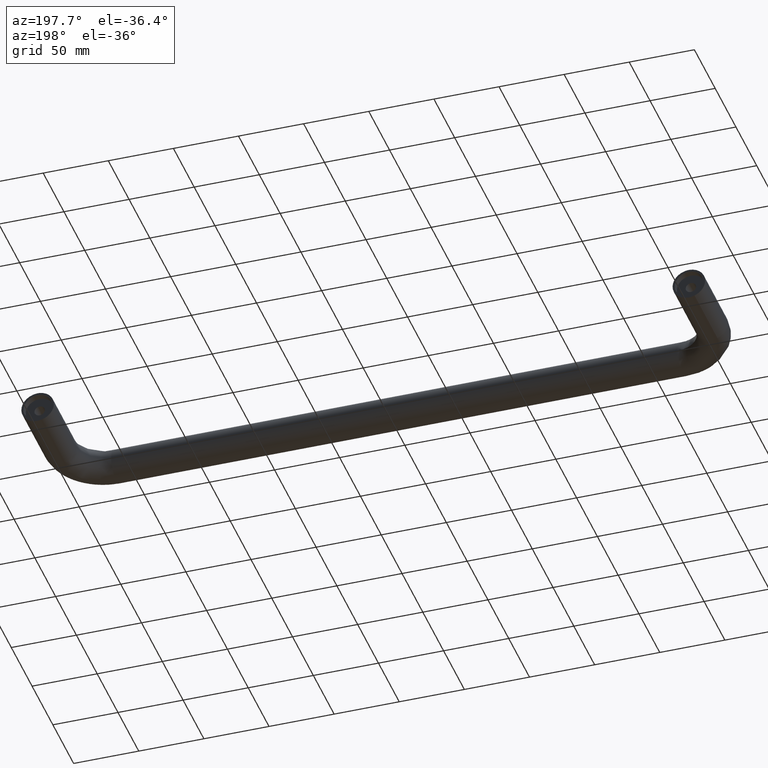
[diagram: clean part render]
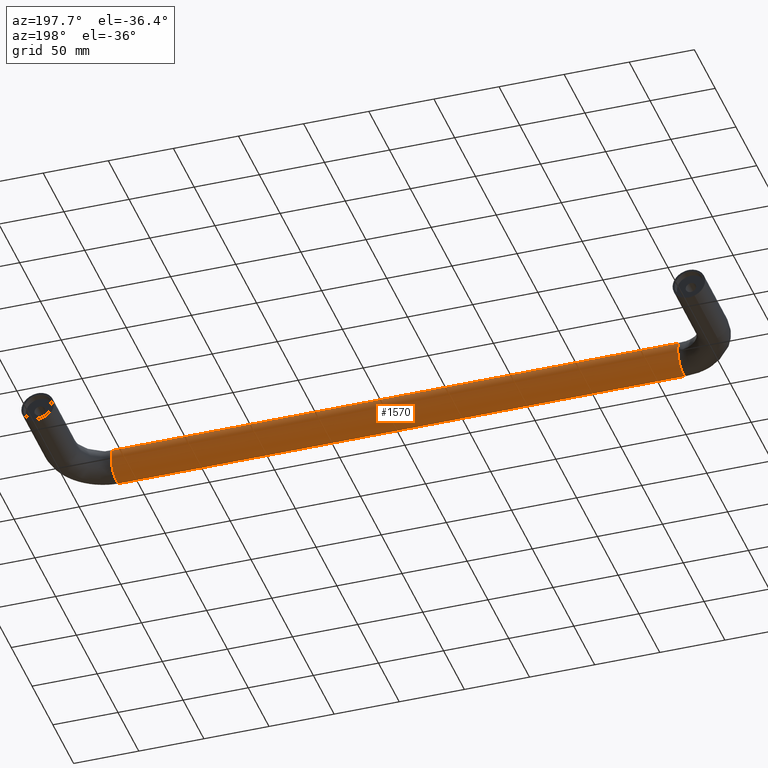
[diagram: same view with one face highlighted and labeled with its STEP entity id]
A machine part, auxiliary view. The second image highlights one B-rep face of the part: STEP entity #1570.
In plain terms, the highlighted face is a freeform B-spline surface patch.
Its self-contained STEP definition (entity closure, byte-faithful):
#1361=CARTESIAN_POINT('',(32.499999999126238,-77.767795817033090,7.844373890179743));
#1362=VERTEX_POINT('',#1361);
#1393=CARTESIAN_POINT('',(32.500000000000000,-96.415632055581426,8.761364337218531));
#1394=VERTEX_POINT('',#1393);
#1408=CARTESIAN_POINT('',(467.500000000000110,-96.415632073586025,8.761364318896899));
#1409=VERTEX_POINT('',#1408);
#1410=CARTESIAN_POINT('',(32.500000000000000,-96.415632055581426,8.761364337218531));
#1411=CARTESIAN_POINT('',(467.500000000000110,-96.415632073586025,8.761364318896899));
#1412=QUASI_UNIFORM_CURVE('',1,(#1410,#1411),.UNSPECIFIED.,.F.,.U.);
#1413=EDGE_CURVE('',#1394,#1409,#1412,.T.);
#1430=CARTESIAN_POINT('',(467.500008146740580,-77.767796957627183,7.844375306044061));
#1431=VERTEX_POINT('',#1430);
#1445=CARTESIAN_POINT('',(32.499999999126238,-77.767795817033090,7.844373890179743));
#1446=CARTESIAN_POINT('',(467.500008146740580,-77.767796957627183,7.844375306044061));
#1447=QUASI_UNIFORM_CURVE('',1,(#1445,#1446),.UNSPECIFIED.,.F.,.U.);
#1448=EDGE_CURVE('',#1362,#1431,#1447,.T.);
#1453=CARTESIAN_POINT('',(21.624998916513270,-96.415630614427272,8.761365803748129));
#1454=CARTESIAN_POINT('',(21.624998916513274,-105.176996418175410,-0.154264810679143));
#1455=CARTESIAN_POINT('',(21.624998916513270,-96.261365803748134,-8.915630614427272));
#1456=CARTESIAN_POINT('',(21.624998916513274,-87.345735189320862,-17.676996418175403));
#1457=CARTESIAN_POINT('',(21.624998916513270,-78.584369385572728,-8.761365803748129));
#1458=CARTESIAN_POINT('',(21.624998916513270,-70.782445849426026,-0.822070733962020));
#1459=CARTESIAN_POINT('',(21.624998916513274,-77.767796957623645,7.844375306036842));
#1460=CARTESIAN_POINT('',(478.646919286294010,-96.415630614427272,8.761365803748129));
#1461=CARTESIAN_POINT('',(478.646919286294010,-105.176996418175410,-0.154264810679143));
#1462=CARTESIAN_POINT('',(478.646919286294010,-96.261365803748134,-8.915630614427272));
#1463=CARTESIAN_POINT('',(478.646919286294010,-87.345735189320862,-17.676996418175403));
#1464=CARTESIAN_POINT('',(478.646919286294010,-78.584369385572728,-8.761365803748129));
#1465=CARTESIAN_POINT('',(478.646919286293950,-70.782445849426026,-0.822070733962020));
#1466=CARTESIAN_POINT('',(478.646919286294010,-77.767796957623645,7.844375306036842));
#1474=(BOUNDED_SURFACE()B_SPLINE_SURFACE(2,1,((#1453,#1460),(#1454,#1461),(#1455,#1462),(#1456,#1463),(#1457,#1464),(#1458,#1465),(#1459,#1466)),.UNSPECIFIED.,.F.,.F.,.U.)B_SPLINE_SURFACE_WITH_KNOTS((3,2,2,3),(2,2),(0.0,20.710678118654759,41.421356237309510,60.475180106471882),(0.0,457.021920369780670),.UNSPECIFIED.)GEOMETRIC_REPRESENTATION_ITEM()RATIONAL_B_SPLINE_SURFACE(((1.0,1.0),(0.707106781186548,0.707106781186548),(1.0,1.0),(0.707106781186548,0.707106781186548),(1.0,1.0),(0.730538238691624,0.730538238691624),(0.956886118190660,0.956886118190660)))REPRESENTATION_ITEM('')SURFACE());
#1475=CARTESIAN_POINT('',(32.500000001655842,-75.030429128414596,-0.871666380278624));
#1476=VERTEX_POINT('',#1475);
#1477=CARTESIAN_POINT('',(32.500000001655842,-75.030429128414596,-0.871666380278624));
#1478=CARTESIAN_POINT('',(32.500000000000000,-75.0,-0.436364686713129));
#1479=CARTESIAN_POINT('',(32.500000000000000,-75.0,0.0));
#1480=CARTESIAN_POINT('',(32.499999999999993,-75.0,4.410479177521092));
#1481=CARTESIAN_POINT('',(32.499999999126238,-77.767795817033090,7.844373890179743));
#1489=(BOUNDED_CURVE()B_SPLINE_CURVE(2,(#1477,#1478,#1479,#1480,#1481),.UNSPECIFIED.,.F.,.U.)B_SPLINE_CURVE_WITH_KNOTS((3,2,3),(0.737833666244486,0.750000000000000,0.858840154701086),.UNSPECIFIED.)CURVE()GEOMETRIC_REPRESENTATION_ITEM()RATIONAL_B_SPLINE_CURVE((0.972879833470600,0.985746253380755,1.0,0.872485827013779,0.856000952542769))REPRESENTATION_ITEM(''));
#1490=EDGE_CURVE('',#1476,#1362,#1489,.T.);
#1491=ORIENTED_EDGE('',*,*,#1490,.T.);
#1492=ORIENTED_EDGE('',*,*,#1448,.T.);
#1493=CARTESIAN_POINT('',(467.500043179713880,-87.342952389587651,-12.499013402957210));
#1494=VERTEX_POINT('',#1493);
#1495=CARTESIAN_POINT('',(467.500043179713880,-87.342952389587651,-12.499013402957205));
#1496=CARTESIAN_POINT('',(467.500043045776580,-75.000000000000384,-12.343926668050738));
#1497=CARTESIAN_POINT('',(467.500021725487730,-75.000000000000185,1.529131E-011));
#1498=CARTESIAN_POINT('',(467.500014107756780,-75.000000000000114,4.410480200226730));
#1499=CARTESIAN_POINT('',(467.500008146740580,-77.767796957627183,7.844375306044062));
#1507=(BOUNDED_CURVE()B_SPLINE_CURVE(2,(#1495,#1496,#1497,#1498,#1499),.UNSPECIFIED.,.F.,.U.)B_SPLINE_CURVE_WITH_KNOTS((3,2,3),(0.502215311678866,0.750000000000000,0.858840176720623),.UNSPECIFIED.)CURVE()GEOMETRIC_REPRESENTATION_ITEM()RATIONAL_B_SPLINE_CURVE((0.994855198796641,0.709702180259740,1.0,0.872485801216287,0.856000945872638))REPRESENTATION_ITEM(''));
#1508=EDGE_CURVE('',#1494,#1431,#1507,.T.);
#1509=ORIENTED_EDGE('',*,*,#1508,.F.);
#1510=CARTESIAN_POINT('',(467.500000012198600,-99.969570615184494,-0.871670048187717));
#1511=VERTEX_POINT('',#1510);
#1512=CARTESIAN_POINT('',(467.500000012198600,-99.969570615184494,-0.871670048187717));
#1513=CARTESIAN_POINT('',(467.500005864386080,-99.748291231215376,-4.037155554801284));
#1514=CARTESIAN_POINT('',(467.500013863975080,-98.271336271480337,-7.098424281378580));
#1515=CARTESIAN_POINT('',(467.500021849221180,-95.914223796682762,-9.243962240253881));
#1516=CARTESIAN_POINT('',(467.500029709776920,-93.593917908884848,-11.355997372942999));
#1517=CARTESIAN_POINT('',(467.500037456679310,-90.471451276995495,-12.538322361086349));
#1518=CARTESIAN_POINT('',(467.500043179713880,-87.342952389587651,-12.499013402957210));
#1519=B_SPLINE_CURVE_WITH_KNOTS('',3,(#1512,#1513,#1514,#1515,#1516,#1517,#1518),.UNSPECIFIED.,.F.,.U.,(4,3,4),(0.0,9.519630640180374,18.890611134426340),.UNSPECIFIED.);
#1520=EDGE_CURVE('',#1511,#1494,#1519,.T.);
#1521=ORIENTED_EDGE('',*,*,#1520,.F.);
#1522=CARTESIAN_POINT('',(467.500000000000000,-96.415632073586139,8.761364318897023));
#1523=CARTESIAN_POINT('',(467.500000000000000,-99.999999999999986,5.113883802724184));
#1524=CARTESIAN_POINT('',(467.500000000000000,-99.999999999999986,0.0));
#1525=CARTESIAN_POINT('',(467.500000000000000,-99.999999999999986,-0.436366158243858));
#1526=CARTESIAN_POINT('',(467.500000012198600,-99.969570615184494,-0.871670048187717));
#1534=(BOUNDED_CURVE()B_SPLINE_CURVE(2,(#1522,#1523,#1524,#1525,#1526),.UNSPECIFIED.,.F.,.U.)B_SPLINE_CURVE_WITH_KNOTS((3,2,3),(0.126316782721224,0.250000000000000,0.262166374198627),.UNSPECIFIED.)CURVE()GEOMETRIC_REPRESENTATION_ITEM()RATIONAL_B_SPLINE_CURVE((0.853569641871790,0.855096097512062,1.0,0.985746205998701,0.972879747929961))REPRESENTATION_ITEM(''));
#1535=EDGE_CURVE('',#1409,#1511,#1534,.T.);
#1536=ORIENTED_EDGE('',*,*,#1535,.F.);
#1537=ORIENTED_EDGE('',*,*,#1413,.F.);
#1538=CARTESIAN_POINT('',(32.500000000000000,-87.500000000000000,-12.500000000000000));
#1539=VERTEX_POINT('',#1538);
#1540=CARTESIAN_POINT('',(32.499999999999993,-96.415632055581554,8.761364337218636));
#1541=CARTESIAN_POINT('',(32.500000000000000,-100.0,5.113883817717606));
#1542=CARTESIAN_POINT('',(32.500000000000000,-99.999999999999986,0.0));
#1543=CARTESIAN_POINT('',(32.499999999999993,-99.999999999999986,-12.499999999999998));
#1544=CARTESIAN_POINT('',(32.500000000000000,-87.500000000000000,-12.500000000000000));
#1552=(BOUNDED_CURVE()B_SPLINE_CURVE(2,(#1540,#1541,#1542,#1543,#1544),.UNSPECIFIED.,.F.,.U.)B_SPLINE_CURVE_WITH_KNOTS((3,2,3),(0.126316782411142,0.250000000000000,0.500000000000000),.UNSPECIFIED.)CURVE()GEOMETRIC_REPRESENTATION_ITEM()RATIONAL_B_SPLINE_CURVE((0.853569641864137,0.855096097148779,1.0,0.707106781186547,1.0))REPRESENTATION_ITEM(''));
#1553=EDGE_CURVE('',#1394,#1539,#1552,.T.);
#1554=ORIENTED_EDGE('',*,*,#1553,.T.);
#1555=CARTESIAN_POINT('',(32.500000000000000,-87.500000000000000,-12.500000000000000));
#1556=CARTESIAN_POINT('',(32.500000000000000,-75.843290787792370,-12.500000000000002));
#1557=CARTESIAN_POINT('',(32.500000001655842,-75.030429128414596,-0.871666380278624));
#1565=(BOUNDED_CURVE()B_SPLINE_CURVE(2,(#1555,#1556,#1557),.UNSPECIFIED.,.F.,.U.)B_SPLINE_CURVE_WITH_KNOTS((3,3),(0.500000000000000,0.737833666244487),.UNSPECIFIED.)CURVE()GEOMETRIC_REPRESENTATION_ITEM()RATIONAL_B_SPLINE_CURVE((1.0,0.721360527805791,0.972879833470602))REPRESENTATION_ITEM(''));
#1566=EDGE_CURVE('',#1539,#1476,#1565,.T.);
#1567=ORIENTED_EDGE('',*,*,#1566,.T.);
#1568=EDGE_LOOP('',(#1491,#1492,#1509,#1521,#1536,#1537,#1554,#1567));
#1569=FACE_OUTER_BOUND('',#1568,.T.);
#1570=ADVANCED_FACE('',(#1569),#1474,.T.);